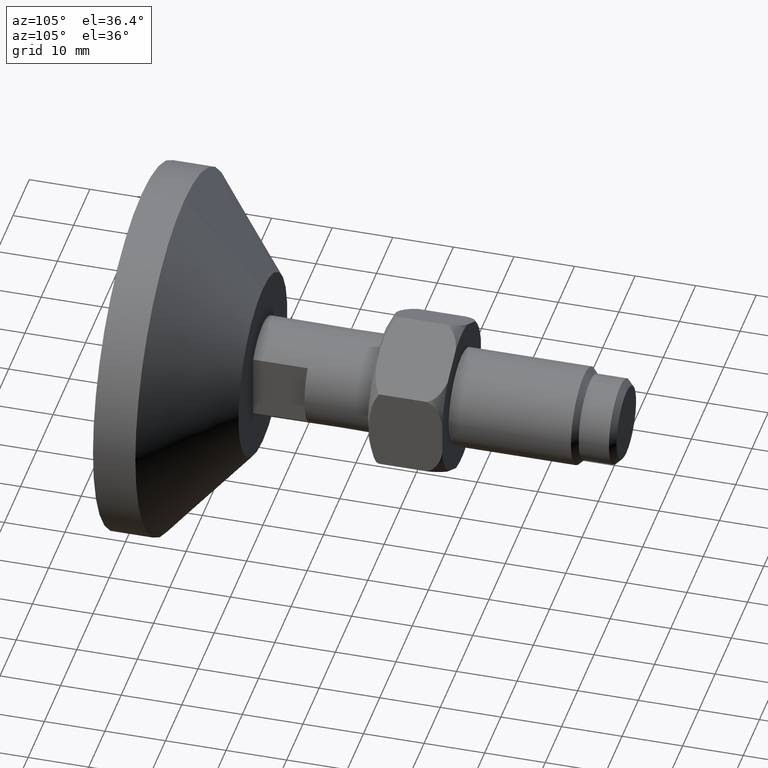
[diagram: clean part render]
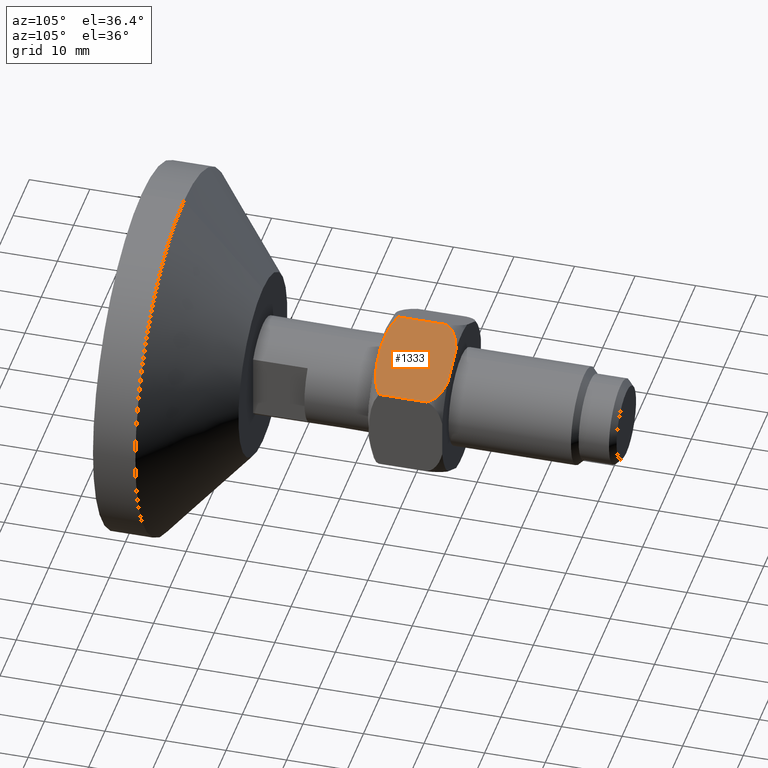
[diagram: same view with one face highlighted and labeled with its STEP entity id]
A machine part, auxiliary view. The second image highlights one B-rep face of the part: STEP entity #1333.
In plain terms, the highlighted planar face has unit normal (-0.5, 0, -0.866).
Its self-contained STEP definition (entity closure, byte-faithful):
#18 = EDGE_CURVE ( 'NONE', #1114, #1111, #1440, .T. ) ;
#35 = EDGE_CURVE ( 'NONE', #1105, #1106, #117, .T. ) ;
#56 = EDGE_CURVE ( 'NONE', #1154, #1153, #883, .T. ) ;
#117 = LINE ( 'NONE', #1281, #1528 ) ;
#248 = PLANE ( 'NONE',  #1477 ) ;
#249 = CARTESIAN_POINT ( 'NONE',  ( -4.443965581537938300E-015, 52.79999999999999700, 13.74093640671310400 ) ) ;
#250 = DIRECTION ( 'NONE',  ( -0.4999999999999998300, 0.0000000000000000000, -0.8660254037844388200 ) ) ;
#251 = DIRECTION ( 'NONE',  ( -0.8660254037844387100, 0.0000000000000000000, 0.4999999999999997800 ) ) ;
#313 = B_SPLINE_CURVE_WITH_KNOTS ( 'NONE', 3,
 ( #450, #451, #452, #453, #454, #455, #456, #457, #458, #459, #460, #461, #462, #463, #464, #465 ),
 .UNSPECIFIED., .F., .F.,
 ( 4, 2, 2, 2, 2, 2, 2, 4 ),
 ( 3.878959614448864200E-018, 0.001201094750445993700, 0.001801642125668985200, 0.002402189500891976700, 0.003002736876114967700, 0.003603284251337958700, 0.004203831626560949700, 0.004804379001783940300 ),
 .UNSPECIFIED. ) ;
#333 = CARTESIAN_POINT ( 'NONE',  ( -6.047775764469060100E-015, 42.35453000970881000, 13.74093640671310000 ) ) ;
#334 = CARTESIAN_POINT ( 'NONE',  ( 0.3713891320404059700, 42.05301756907753200, 13.52651479135546700 ) ) ;
#335 = CARTESIAN_POINT ( 'NONE',  ( 0.7669448577605991700, 41.81379484117890400, 13.29814058663142600 ) ) ;
#336 = CARTESIAN_POINT ( 'NONE',  ( 1.590275872579503200, 41.41839573332018200, 12.82279020359356800 ) ) ;
#337 = CARTESIAN_POINT ( 'NONE',  ( 2.020940125836847600, 41.26226248936451000, 12.57414608104508200 ) ) ;
#338 = CARTESIAN_POINT ( 'NONE',  ( 2.893939936839216900, 41.01590583787056200, 12.07011940516037300 ) ) ;
#339 = CARTESIAN_POINT ( 'NONE',  ( 3.333410058656475900, 40.92593414486074700, 11.81639121202837100 ) ) ;
#340 = CARTESIAN_POINT ( 'NONE',  ( 4.216551295106570200, 40.79295731302877200, 11.30650938143145500 ) ) ;
#341 = CARTESIAN_POINT ( 'NONE',  ( 4.660232537317699400, 40.75006539921692200, 11.05034989680647000 ) ) ;
#342 = CARTESIAN_POINT ( 'NONE',  ( 5.996379735406193800, 40.67844580597401500, 10.27892495231311500 ) ) ;
#343 = CARTESIAN_POINT ( 'NONE',  ( 6.898378540792709400, 40.70351320283161600, 9.758155699214494700 ) ) ;
#344 = CARTESIAN_POINT ( 'NONE',  ( 8.228394312440752100, 40.86764378516351600, 8.990270735427055000 ) ) ;
#345 = CARTESIAN_POINT ( 'NONE',  ( 8.668868288590010400, 40.94427284396202500, 8.735962966726255300 ) ) ;
#346 = CARTESIAN_POINT ( 'NONE',  ( 9.323758804896160200, 41.10375213313501800, 8.357861750847162000 ) ) ;
#347 = CARTESIAN_POINT ( 'NONE',  ( 9.541076274042614700, 41.16440563434787200, 8.232393451535847000 ) ) ;
#348 = CARTESIAN_POINT ( 'NONE',  ( 9.973350355434458700, 41.30377695389780300, 7.982819894280568800 ) ) ;
#349 = CARTESIAN_POINT ( 'NONE',  ( 10.18899651551473100, 41.38283175229885600, 7.858316525708513500 ) ) ;
#350 = CARTESIAN_POINT ( 'NONE',  ( 10.40000000000000700, 41.47156962683774900, 7.736493607140993800 ) ) ;
#354 = CARTESIAN_POINT ( 'NONE',  ( 11.90000000000000400, 52.79999999999999700, 6.870468203356553600 ) ) ;
#355 = DIRECTION ( 'NONE',  ( -0.0000000000000000000, -1.000000000000000000, -0.0000000000000000000 ) ) ;
#398 = CARTESIAN_POINT ( 'NONE',  ( 11.90000000000000400, 50.24676193515613000, 6.870468203356553600 ) ) ;
#399 = CARTESIAN_POINT ( 'NONE',  ( 11.83640742975784800, 50.43743458947259500, 6.907183390904325600 ) ) ;
#400 = CARTESIAN_POINT ( 'NONE',  ( 11.75457905216515400, 50.61521734069540900, 6.954427026734821400 ) ) ;
#401 = CARTESIAN_POINT ( 'NONE',  ( 11.56127288817790300, 50.94982528426260900, 7.066032392548871500 ) ) ;
#402 = CARTESIAN_POINT ( 'NONE',  ( 11.44842152244880400, 51.10793985541742800, 7.131187158930974800 ) ) ;
#403 = CARTESIAN_POINT ( 'NONE',  ( 11.08176376408209400, 51.54159352402066200, 7.342877114424456200 ) ) ;
#404 = CARTESIAN_POINT ( 'NONE',  ( 10.79994507649696100, 51.78037656030883100, 7.505585209564393300 ) ) ;
#405 = CARTESIAN_POINT ( 'NONE',  ( 10.19227531268563800, 52.18500171154393300, 7.856423511279251300 ) ) ;
#406 = CARTESIAN_POINT ( 'NONE',  ( 9.874434989883264200, 52.34555303006538200, 8.039928707208540400 ) ) ;
#407 = CARTESIAN_POINT ( 'NONE',  ( 9.220215274729222100, 52.61137609001537600, 8.417642635861886500 ) ) ;
#408 = CARTESIAN_POINT ( 'NONE',  ( 8.882799643911129200, 52.71639002267954800, 8.612449641142941200 ) ) ;
#409 = CARTESIAN_POINT ( 'NONE',  ( 8.540620882409706700, 52.79999999999999700, 8.810006641207325000 ) ) ;
#450 = CARTESIAN_POINT ( 'NONE',  ( 3.359379117590301600, 52.79999999999999700, 11.80139796886233900 ) ) ;
#451 = CARTESIAN_POINT ( 'NONE',  ( 3.017563360649127900, 52.71647872135523000, 11.99874538814557600 ) ) ;
#452 = CARTESIAN_POINT ( 'NONE',  ( 2.681968880796719000, 52.61211934173841300, 12.19250095142691700 ) ) ;
#453 = CARTESIAN_POINT ( 'NONE',  ( 2.191299805964578500, 52.41296590933854600, 12.47578887386427800 ) ) ;
#454 = CARTESIAN_POINT ( 'NONE',  ( 2.029881276389021000, 52.33942079753371200, 12.56898390536693100 ) ) ;
#455 = CARTESIAN_POINT ( 'NONE',  ( 1.712238045508023300, 52.17493390176485200, 12.75237531022233200 ) ) ;
#456 = CARTESIAN_POINT ( 'NONE',  ( 1.555247455965945900, 52.08347175356779200, 12.84301386935468300 ) ) ;
#457 = CARTESIAN_POINT ( 'NONE',  ( 1.252564506065200200, 51.88192805968030500, 13.01776795195898600 ) ) ;
#458 = CARTESIAN_POINT ( 'NONE',  ( 1.106776416502841800, 51.77195194879804100, 13.10193874471246100 ) ) ;
#459 = CARTESIAN_POINT ( 'NONE',  ( 0.8286490069284659900, 51.52970953538636000, 13.26251567949923600 ) ) ;
#460 = CARTESIAN_POINT ( 'NONE',  ( 0.6953311789225865600, 51.39630131554726200, 13.33948676338620800 ) ) ;
#461 = CARTESIAN_POINT ( 'NONE',  ( 0.4511975891895885800, 51.10741893476110000, 13.48043735713679300 ) ) ;
#462 = CARTESIAN_POINT ( 'NONE',  ( 0.3405355326903111700, 50.95256537290993700, 13.54432812524571400 ) ) ;
#463 = CARTESIAN_POINT ( 'NONE',  ( 0.1466796109435085400, 50.61778016311880200, 13.65625089385022900 ) ) ;
#464 = CARTESIAN_POINT ( 'NONE',  ( 0.06337779937078295800, 50.43679063166499800, 13.70434521718573400 ) ) ;
#465 = CARTESIAN_POINT ( 'NONE',  ( -4.443965581537938300E-015, 50.24676193515611500, 13.74093640671310400 ) ) ;
#522 = LINE ( 'NONE', #354, #524 ) ;
#524 = VECTOR ( 'NONE', #355, 1000.000000000000000 ) ;
#596 = FACE_OUTER_BOUND ( 'NONE', #722, .T. ) ;
#684 = CARTESIAN_POINT ( 'NONE',  ( 11.90000000000000400, 42.35453000970881000, 6.870468203356553600 ) ) ;
#722 = EDGE_LOOP ( 'NONE', ( #1323, #1299, #1292, #1291, #1294, #1310, #1306 ) ) ;
#852 = EDGE_CURVE ( 'NONE', #1111, #1154, #885, .T. ) ;
#854 = EDGE_CURVE ( 'NONE', #1113, #1153, #522, .T. ) ;
#861 = EDGE_CURVE ( 'NONE', #1113, #1106, #878, .T. ) ;
#867 = EDGE_CURVE ( 'NONE', #1105, #1114, #313, .T. ) ;
#878 = B_SPLINE_CURVE_WITH_KNOTS ( 'NONE', 3,
 ( #398, #399, #400, #401, #402, #403, #404, #405, #406, #407, #408, #409 ),
 .UNSPECIFIED., .F., .F.,
 ( 4, 2, 2, 2, 2, 4 ),
 ( 2.507860637005088400E-017, 0.0006028800655106784500, 0.001205760131021332000, 0.002411520262042637900, 0.003617280393063945200, 0.004823040524085252400 ),
 .UNSPECIFIED. ) ;
#883 = B_SPLINE_CURVE_WITH_KNOTS ( 'NONE', 3,
 ( #1522, #1523, #1524, #684 ),
 .UNSPECIFIED., .F., .F.,
 ( 4, 4 ),
 ( 0.01235124367241149600, 0.01428945524940345100 ),
 .UNSPECIFIED. ) ;
#885 = B_SPLINE_CURVE_WITH_KNOTS ( 'NONE', 3,
 ( #333, #334, #335, #336, #337, #338, #339, #340, #341, #342, #343, #344, #345, #346, #347, #348, #349, #350 ),
 .UNSPECIFIED., .F., .F.,
 ( 4, 2, 2, 2, 2, 2, 2, 2, 4 ),
 ( 0.0000000000000000000, 0.001543905459051437600, 0.003087810918102875300, 0.004631716377154313100, 0.006175621836205750500, 0.009263432754308624500, 0.01080733821336006000, 0.01157929094288577900, 0.01235124367241149600 ),
 .UNSPECIFIED. ) ;
#953 = CARTESIAN_POINT ( 'NONE',  ( 3.359379117590301600, 52.79999999999999700, 11.80139796886233900 ) ) ;
#954 = CARTESIAN_POINT ( 'NONE',  ( 8.540620882409706700, 52.79999999999999700, 8.810006641207325000 ) ) ;
#959 = CARTESIAN_POINT ( 'NONE',  ( -6.047775764469060100E-015, 42.35453000970881000, 13.74093640671310000 ) ) ;
#961 = CARTESIAN_POINT ( 'NONE',  ( 11.90000000000000400, 50.24676193515613000, 6.870468203356553600 ) ) ;
#962 = CARTESIAN_POINT ( 'NONE',  ( -4.443965581537938300E-015, 50.24676193515611500, 13.74093640671310400 ) ) ;
#1001 = CARTESIAN_POINT ( 'NONE',  ( 11.90000000000000400, 42.35453000970881000, 6.870468203356553600 ) ) ;
#1002 = CARTESIAN_POINT ( 'NONE',  ( 10.40000000000000700, 41.47156962683774900, 7.736493607140993800 ) ) ;
#1105 = VERTEX_POINT ( 'NONE', #953 ) ;
#1106 = VERTEX_POINT ( 'NONE', #954 ) ;
#1111 = VERTEX_POINT ( 'NONE', #959 ) ;
#1113 = VERTEX_POINT ( 'NONE', #961 ) ;
#1114 = VERTEX_POINT ( 'NONE', #962 ) ;
#1153 = VERTEX_POINT ( 'NONE', #1001 ) ;
#1154 = VERTEX_POINT ( 'NONE', #1002 ) ;
#1175 = CARTESIAN_POINT ( 'NONE',  ( -4.443965581537938300E-015, 52.79999999999999700, 13.74093640671310400 ) ) ;
#1176 = DIRECTION ( 'NONE',  ( -0.0000000000000000000, -1.000000000000000000, -0.0000000000000000000 ) ) ;
#1266 = DIRECTION ( 'NONE',  ( 0.8660254037844387100, 0.0000000000000000000, -0.4999999999999997800 ) ) ;
#1281 = CARTESIAN_POINT ( 'NONE',  ( -4.443965581537938300E-015, 52.79999999999999700, 13.74093640671310400 ) ) ;
#1291 = ORIENTED_EDGE ( 'NONE', *, *, #854, .F. ) ;
#1292 = ORIENTED_EDGE ( 'NONE', *, *, #56, .T. ) ;
#1294 = ORIENTED_EDGE ( 'NONE', *, *, #861, .T. ) ;
#1299 = ORIENTED_EDGE ( 'NONE', *, *, #852, .T. ) ;
#1306 = ORIENTED_EDGE ( 'NONE', *, *, #867, .T. ) ;
#1310 = ORIENTED_EDGE ( 'NONE', *, *, #35, .F. ) ;
#1323 = ORIENTED_EDGE ( 'NONE', *, *, #18, .T. ) ;
#1333 = ADVANCED_FACE ( 'NONE', ( #596 ), #248, .F. ) ;
#1433 = VECTOR ( 'NONE', #1176, 1000.000000000000000 ) ;
#1440 = LINE ( 'NONE', #1175, #1433 ) ;
#1477 = AXIS2_PLACEMENT_3D ( 'NONE', #249, #250, #251 ) ;
#1522 = CARTESIAN_POINT ( 'NONE',  ( 10.40000000000000700, 41.47156962683774900, 7.736493607140993800 ) ) ;
#1523 = CARTESIAN_POINT ( 'NONE',  ( 10.92978554356078300, 41.69437183890404000, 7.430621780953408100 ) ) ;
#1524 = CARTESIAN_POINT ( 'NONE',  ( 11.43473607389399600, 41.97680527358851100, 7.139088456338080300 ) ) ;
#1528 = VECTOR ( 'NONE', #1266, 1000.000000000000100 ) ;